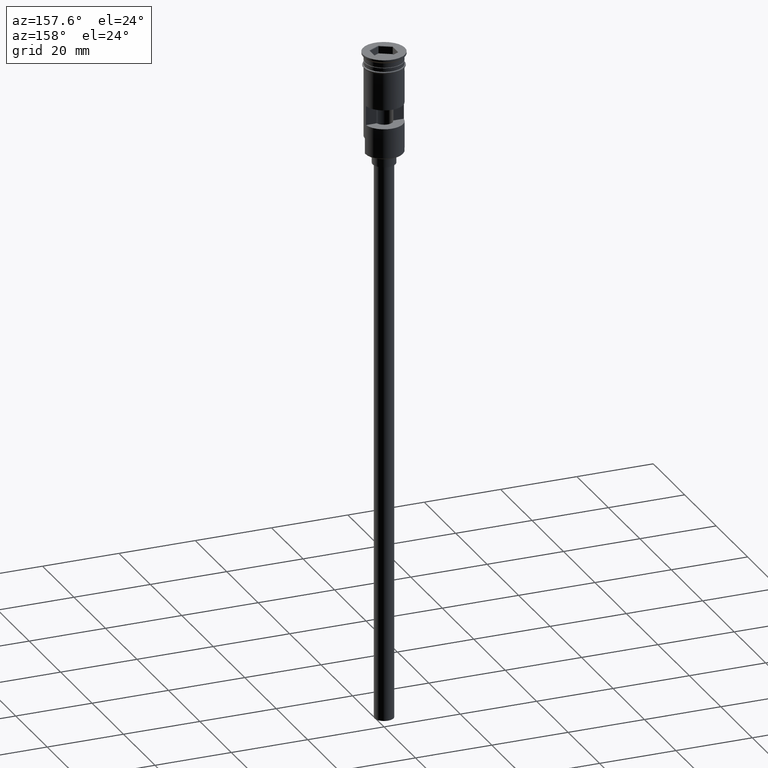
[diagram: clean part render]
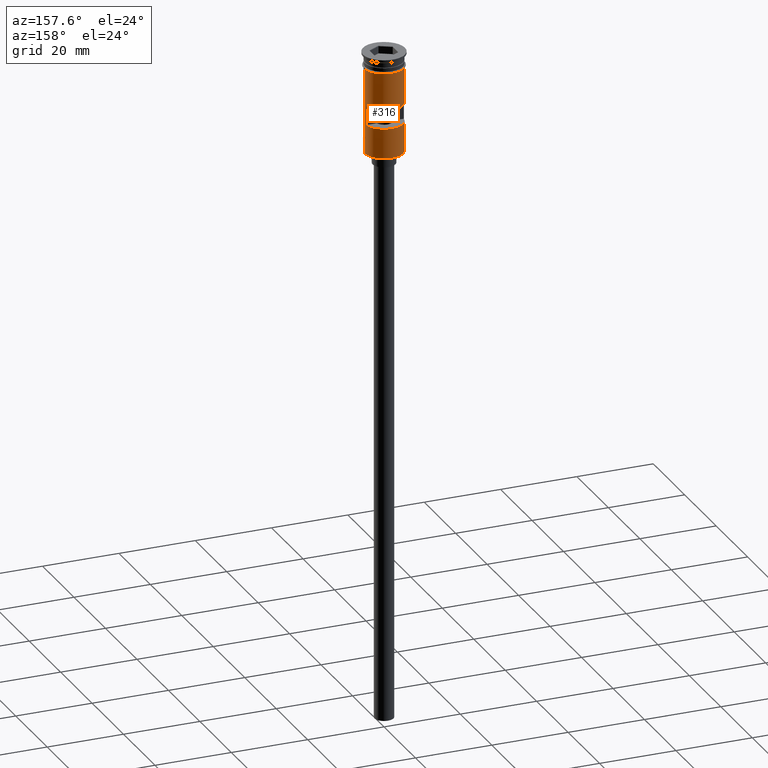
[diagram: same view with one face highlighted and labeled with its STEP entity id]
A machine part, auxiliary view. The second image highlights one B-rep face of the part: STEP entity #316.
In plain terms, the highlighted cylindrical surface (edge-blend (fillet) strip) has radius 5 mm, axis along (-0, -0, 1).
Its self-contained STEP definition (entity closure, byte-faithful):
#1 = ORIENTED_EDGE ( 'NONE', *, *, #1272, .T. ) ;
#15 = VECTOR ( 'NONE', #612, 1000.000000000000000 ) ;
#49 = DIRECTION ( 'NONE',  ( -0.000000000000000000, -0.000000000000000000, 1.000000000000000000 ) ) ;
#51 = DIRECTION ( 'NONE',  ( 0.000000000000000000, 0.000000000000000000, 1.000000000000000000 ) ) ;
#63 = CARTESIAN_POINT ( 'NONE',  ( 4.999999999999993783, 6.123233995736758394E-16, -26.30000000000000071 ) ) ;
#81 = EDGE_CURVE ( 'NONE', #866, #1330, #1561, .T. ) ;
#92 = EDGE_CURVE ( 'NONE', #1568, #360, #1003, .T. ) ;
#120 = LINE ( 'NONE', #615, #463 ) ;
#131 = EDGE_CURVE ( 'NONE', #1401, #1288, #1048, .T. ) ;
#155 = ORIENTED_EDGE ( 'NONE', *, *, #92, .F. ) ;
#183 = AXIS2_PLACEMENT_3D ( 'NONE', #184, #51, #814 ) ;
#184 = CARTESIAN_POINT ( 'NONE',  ( 0.000000000000000000, 0.000000000000000000, -26.30000000000000071 ) ) ;
#206 = CARTESIAN_POINT ( 'NONE',  ( -4.999999999999996447, 6.123233995736762338E-16, 0.000000000000000000 ) ) ;
#207 = DIRECTION ( 'NONE',  ( 0.000000000000000000, -1.000000000000000000, 3.469446951953616654E-16 ) ) ;
#217 = ORIENTED_EDGE ( 'NONE', *, *, #899, .F. ) ;
#249 = VERTEX_POINT ( 'NONE', #63 ) ;
#272 = ORIENTED_EDGE ( 'NONE', *, *, #619, .T. ) ;
#284 = CARTESIAN_POINT ( 'NONE',  ( -4.999999999999999112, 6.123233995736765296E-16, -3.799999999999998934 ) ) ;
#286 = DIRECTION ( 'NONE',  ( -1.000000000000000000, 0.000000000000000000, 0.000000000000000000 ) ) ;
#289 = CARTESIAN_POINT ( 'NONE',  ( -4.999999999999993783, 0.000000000000000000, -26.50000000000000000 ) ) ;
#294 = CYLINDRICAL_SURFACE ( 'NONE', #437, 4.999999999999996447 ) ;
#316 = ADVANCED_FACE ( 'NONE', ( #1009, #1111 ), #294, .T. ) ;
#320 = ORIENTED_EDGE ( 'NONE', *, *, #1073, .T. ) ;
#330 = CARTESIAN_POINT ( 'NONE',  ( -4.999999999999993783, 0.000000000000000000, -22.30000000000001137 ) ) ;
#360 = VERTEX_POINT ( 'NONE', #761 ) ;
#417 = DIRECTION ( 'NONE',  ( 1.000000000000000000, 0.000000000000000000, 0.000000000000000000 ) ) ;
#437 = AXIS2_PLACEMENT_3D ( 'NONE', #776, #1368, #1231 ) ;
#442 = CIRCLE ( 'NONE', #183, 4.999999999999996447 ) ;
#452 = VERTEX_POINT ( 'NONE', #330 ) ;
#463 = VECTOR ( 'NONE', #1444, 1000.000000000000000 ) ;
#474 = EDGE_LOOP ( 'NONE', ( #272, #1, #1092, #155, #217, #320 ) ) ;
#489 = EDGE_CURVE ( 'NONE', #360, #1270, #743, .T. ) ;
#517 = DIRECTION ( 'NONE',  ( 0.000000000000000000, 0.000000000000000000, 1.000000000000000000 ) ) ;
#565 = VECTOR ( 'NONE', #1495, 1000.000000000000000 ) ;
#597 = CARTESIAN_POINT ( 'NONE',  ( -4.963869458396339418, 0.5999999999999998668, -18.50000000000000355 ) ) ;
#612 = DIRECTION ( 'NONE',  ( 0.000000000000000000, 0.000000000000000000, -1.000000000000000000 ) ) ;
#615 = CARTESIAN_POINT ( 'NONE',  ( -4.963869458396339418, 0.5999999999999998668, 0.000000000000000000 ) ) ;
#619 = EDGE_CURVE ( 'NONE', #854, #452, #1594, .T. ) ;
#625 = CARTESIAN_POINT ( 'NONE',  ( 4.999999999999993783, 6.123233995736758394E-16, -26.50000000000000000 ) ) ;
#675 = CARTESIAN_POINT ( 'NONE',  ( -4.999999999999993783, 0.000000000000000000, -26.30000000000000071 ) ) ;
#676 = ORIENTED_EDGE ( 'NONE', *, *, #1434, .F. ) ;
#703 = DIRECTION ( 'NONE',  ( -0.000000000000000000, -3.942553354492746489E-16, -1.000000000000000000 ) ) ;
#739 = AXIS2_PLACEMENT_3D ( 'NONE', #1307, #703, #207 ) ;
#743 = CIRCLE ( 'NONE', #921, 4.999999999999999112 ) ;
#754 = DIRECTION ( 'NONE',  ( -0.000000000000000000, -0.000000000000000000, 1.000000000000000000 ) ) ;
#761 = CARTESIAN_POINT ( 'NONE',  ( 4.999999999999999112, 0.000000000000000000, -3.799999999999998934 ) ) ;
#776 = CARTESIAN_POINT ( 'NONE',  ( 0.000000000000000000, 0.000000000000000000, 0.000000000000000000 ) ) ;
#796 = CARTESIAN_POINT ( 'NONE',  ( 4.963869458396339418, 0.5999999999999998668, -18.50000000000000355 ) ) ;
#814 = DIRECTION ( 'NONE',  ( -1.000000000000000000, 0.000000000000000000, 0.000000000000000000 ) ) ;
#820 = EDGE_CURVE ( 'NONE', #1330, #1401, #120, .T. ) ;
#854 = VERTEX_POINT ( 'NONE', #675 ) ;
#866 = VERTEX_POINT ( 'NONE', #796 ) ;
#881 = LINE ( 'NONE', #1214, #15 ) ;
#886 = CARTESIAN_POINT ( 'NONE',  ( 4.999999999999996447, 0.000000000000000000, 0.000000000000000000 ) ) ;
#899 = EDGE_CURVE ( 'NONE', #249, #1568, #1193, .T. ) ;
#921 = AXIS2_PLACEMENT_3D ( 'NONE', #1160, #49, #417 ) ;
#980 = CARTESIAN_POINT ( 'NONE',  ( 4.999999999999996447, 6.123233995736761352E-16, -22.30000000000001137 ) ) ;
#1003 = LINE ( 'NONE', #886, #565 ) ;
#1009 = FACE_BOUND ( 'NONE', #1141, .T. ) ;
#1048 = CIRCLE ( 'NONE', #739, 4.999999999999996447 ) ;
#1058 = LINE ( 'NONE', #206, #1385 ) ;
#1073 = EDGE_CURVE ( 'NONE', #249, #854, #442, .T. ) ;
#1085 = CARTESIAN_POINT ( 'NONE',  ( -4.963869458396339418, 0.5999999999999998668, -13.49999999999999822 ) ) ;
#1092 = ORIENTED_EDGE ( 'NONE', *, *, #489, .F. ) ;
#1111 = FACE_OUTER_BOUND ( 'NONE', #474, .T. ) ;
#1141 = EDGE_LOOP ( 'NONE', ( #676, #1327, #1455, #1225 ) ) ;
#1160 = CARTESIAN_POINT ( 'NONE',  ( 0.000000000000000000, 0.000000000000000000, -3.799999999999998934 ) ) ;
#1193 = LINE ( 'NONE', #625, #1360 ) ;
#1214 = CARTESIAN_POINT ( 'NONE',  ( 4.963869458396339418, 0.5999999999999998668, 0.000000000000000000 ) ) ;
#1225 = ORIENTED_EDGE ( 'NONE', *, *, #81, .F. ) ;
#1226 = DIRECTION ( 'NONE',  ( -0.000000000000000000, -0.000000000000000000, 1.000000000000000000 ) ) ;
#1231 = DIRECTION ( 'NONE',  ( 1.000000000000000000, 0.000000000000000000, 0.000000000000000000 ) ) ;
#1259 = VECTOR ( 'NONE', #754, 1000.000000000000000 ) ;
#1270 = VERTEX_POINT ( 'NONE', #284 ) ;
#1272 = EDGE_CURVE ( 'NONE', #452, #1270, #1058, .T. ) ;
#1288 = VERTEX_POINT ( 'NONE', #1328 ) ;
#1307 = CARTESIAN_POINT ( 'NONE',  ( 0.000000000000000000, 0.000000000000000000, -13.49999999999999822 ) ) ;
#1327 = ORIENTED_EDGE ( 'NONE', *, *, #131, .F. ) ;
#1328 = CARTESIAN_POINT ( 'NONE',  ( 4.963869458396339418, 0.5999999999999998668, -13.49999999999999822 ) ) ;
#1330 = VERTEX_POINT ( 'NONE', #597 ) ;
#1360 = VECTOR ( 'NONE', #1226, 1000.000000000000000 ) ;
#1368 = DIRECTION ( 'NONE',  ( -0.000000000000000000, -0.000000000000000000, 1.000000000000000000 ) ) ;
#1377 = CARTESIAN_POINT ( 'NONE',  ( 0.000000000000000000, 0.000000000000000000, -18.50000000000000355 ) ) ;
#1385 = VECTOR ( 'NONE', #1447, 1000.000000000000000 ) ;
#1401 = VERTEX_POINT ( 'NONE', #1085 ) ;
#1431 = AXIS2_PLACEMENT_3D ( 'NONE', #1377, #517, #286 ) ;
#1434 = EDGE_CURVE ( 'NONE', #1288, #866, #881, .T. ) ;
#1444 = DIRECTION ( 'NONE',  ( -0.000000000000000000, -0.000000000000000000, 1.000000000000000000 ) ) ;
#1447 = DIRECTION ( 'NONE',  ( -0.000000000000000000, -0.000000000000000000, 1.000000000000000000 ) ) ;
#1455 = ORIENTED_EDGE ( 'NONE', *, *, #820, .F. ) ;
#1495 = DIRECTION ( 'NONE',  ( -0.000000000000000000, -0.000000000000000000, 1.000000000000000000 ) ) ;
#1561 = CIRCLE ( 'NONE', #1431, 4.999999999999996447 ) ;
#1568 = VERTEX_POINT ( 'NONE', #980 ) ;
#1594 = LINE ( 'NONE', #289, #1259 ) ;